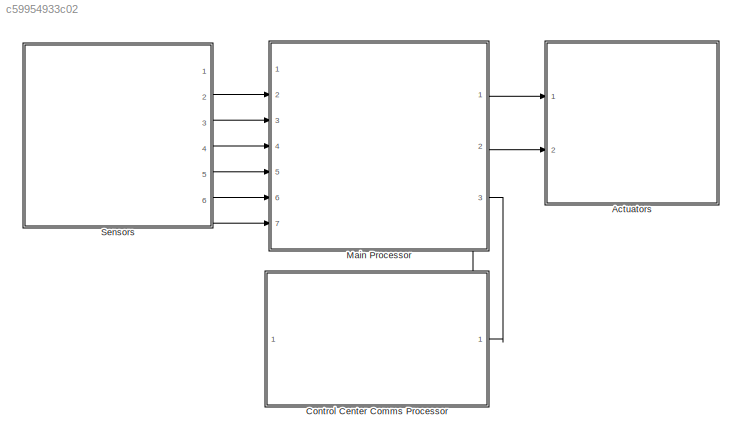
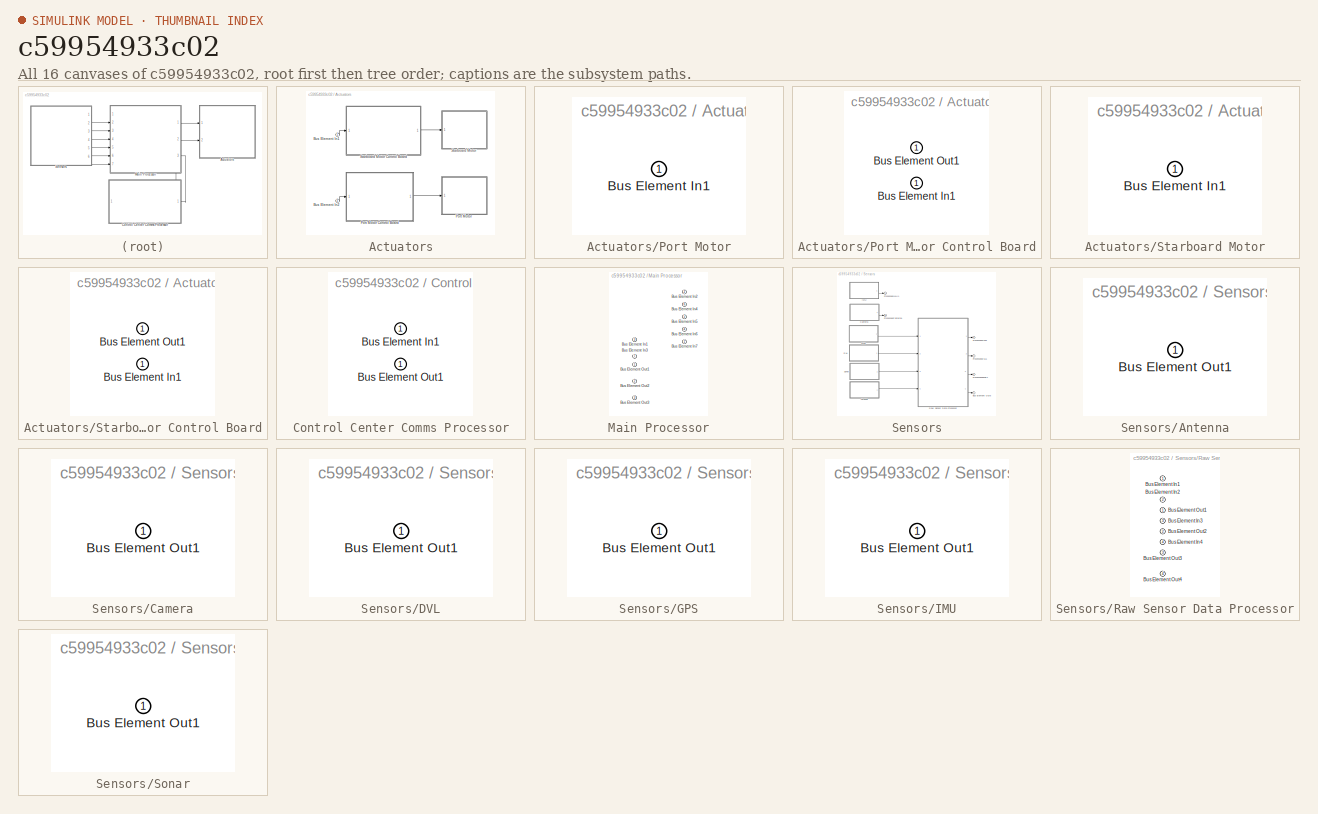
[diagram: thumbnail index - all 16 canvases of the model, root first then tree order]
MODEL slx_c59954933c02
KIND model
CONFIG AbsTol = auto
CONFIG EnableMultiTasking = off
CONFIG FixedStep = auto
CONFIG MaxStep = auto
CONFIG MinStep = auto
CONFIG RelTol = 1e-3
CONFIG SampleTimeConstraint = Unconstrained
CONFIG SolverName = VariableStepAuto
CONFIG StartTime = 0.0
CONFIG StopTime = 10.0
WORKSPACE source: mxarray member
WORKSPACE DataToReport: Simulink.Bus (value not decoded)
BLOCK [SubSystem] Actuators
  PortSchema = {"entries":[{"content":{"headerSize":26,"margin":15,"minimumSpacing":25,"sides":[{"content":{"connectorIds":["In1","In2"]},"type":"ConnectorPlacement.EquallySpacedRectSide","uuid":"92d6a8cb-947e-47d6-81f8-e687db23cc48"},{"content":{"connectorIds":[],"side":"RIGHT"},"type":"ConnectorPlacement.EquallySpacedRectSide","uuid":"2f71feb6-2a58-4436-853a-8f489ba40545"},{"content":{"connectorIds":[],"side":...<+290ch>
  Ports = [2]
  RequestExecContextInheritance = off
BLOCK [Inport] Actuators/Bus Element In1
BLOCK [Inport] Actuators/Bus Element In2
  Port = 2
BLOCK [SubSystem] Actuators/Port Motor
  PortSchema = {"entries":[{"content":{"headerSize":26,"margin":15,"minimumSpacing":25,"sides":[{"content":{"connectorIds":["In1"]},"type":"ConnectorPlacement.EquallySpacedRectSide","uuid":"92d6a8cb-947e-47d6-81f8-e687db23cc48"},{"content":{"connectorIds":[],"side":"RIGHT"},"type":"ConnectorPlacement.EquallySpacedRectSide","uuid":"2f71feb6-2a58-4436-853a-8f489ba40545"},{"content":{"connectorIds":[],"side":"TOP"}...<+284ch>
  Ports = [1]
  RequestExecContextInheritance = off
BLOCK [SubSystem] Actuators/Port Motor Control Board
  PortSchema = {"entries":[{"content":{"headerSize":26,"margin":15,"minimumSpacing":25,"sides":[{"content":{"connectorIds":["In1"]},"type":"ConnectorPlacement.EquallySpacedRectSide","uuid":"92d6a8cb-947e-47d6-81f8-e687db23cc48"},{"content":{"connectorIds":["Out1"],"side":"RIGHT"},"type":"ConnectorPlacement.EquallySpacedRectSide","uuid":"2f71feb6-2a58-4436-853a-8f489ba40545"},{"content":{"connectorIds":[],"side":...<+290ch>
  Ports = [1, 1]
  RequestExecContextInheritance = off
BLOCK [Inport] Actuators/Port Motor Control Board/Bus Element In1
BLOCK [Outport] Actuators/Port Motor Control Board/Bus Element Out1
BLOCK [Inport] Actuators/Port Motor/Bus Element In1
BLOCK [SubSystem] Actuators/Starboard Motor
  PortSchema = {"entries":[{"content":{"headerSize":26,"margin":15,"minimumSpacing":25,"sides":[{"content":{"connectorIds":["In1"]},"type":"ConnectorPlacement.EquallySpacedRectSide","uuid":"92d6a8cb-947e-47d6-81f8-e687db23cc48"},{"content":{"connectorIds":[],"side":"RIGHT"},"type":"ConnectorPlacement.EquallySpacedRectSide","uuid":"2f71feb6-2a58-4436-853a-8f489ba40545"},{"content":{"connectorIds":[],"side":"TOP"}...<+284ch>
  Ports = [1]
  RequestExecContextInheritance = off
BLOCK [SubSystem] Actuators/Starboard Motor Control Board
  PortSchema = {"entries":[{"content":{"headerSize":26,"margin":15,"minimumSpacing":25,"sides":[{"content":{"connectorIds":["In1"]},"type":"ConnectorPlacement.EquallySpacedRectSide","uuid":"92d6a8cb-947e-47d6-81f8-e687db23cc48"},{"content":{"connectorIds":["Out1"],"side":"RIGHT"},"type":"ConnectorPlacement.EquallySpacedRectSide","uuid":"2f71feb6-2a58-4436-853a-8f489ba40545"},{"content":{"connectorIds":[],"side":...<+290ch>
  Ports = [1, 1]
  RequestExecContextInheritance = off
BLOCK [Inport] Actuators/Starboard Motor Control Board/Bus Element In1
BLOCK [Outport] Actuators/Starboard Motor Control Board/Bus Element Out1
BLOCK [Inport] Actuators/Starboard Motor/Bus Element In1
BLOCK [SubSystem] Control Center Comms Processor
  PortSchema = {"entries":[{"content":{"headerSize":26,"margin":15,"minimumSpacing":25,"sides":[{"content":{"connectorIds":["Out1"]},"type":"ConnectorPlacement.EquallySpacedRectSide","uuid":"92d6a8cb-947e-47d6-81f8-e687db23cc48"},{"content":{"connectorIds":["In1"],"side":"RIGHT"},"type":"ConnectorPlacement.EquallySpacedRectSide","uuid":"2f71feb6-2a58-4436-853a-8f489ba40545"},{"content":{"connectorIds":[],"side":...<+290ch>
  Ports = [1, 1]
  RequestExecContextInheritance = off
BLOCK [Inport] Control Center Comms Processor/Bus Element In1
BLOCK [Outport] Control Center Comms Processor/Bus Element Out1
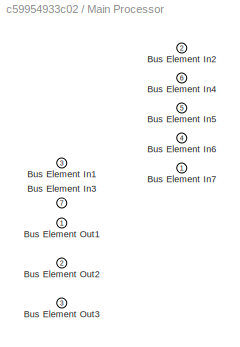
BLOCK [SubSystem] Main Processor
  PortSchema = {"entries":[{"content":{"headerSize":26,"margin":15,"minimumSpacing":25,"sides":[{"content":{"connectorIds":["In3","In2","In4","In5","In6","In7","In1"]},"type":"ConnectorPlacement.EquallySpacedRectSide","uuid":"92d6a8cb-947e-47d6-81f8-e687db23cc48"},{"content":{"connectorIds":["Out1","Out2","Out3"],"side":"RIGHT"},"type":"ConnectorPlacement.EquallySpacedRectSide","uuid":"2f71feb6-2a58-4436-853a-8f...<+484ch>
  Ports = [7, 3]
  RequestExecContextInheritance = off
BLOCK [Inport] Main Processor/Bus Element In1
  Port = 3
BLOCK [Inport] Main Processor/Bus Element In2
  Port = 2
BLOCK [Inport] Main Processor/Bus Element In3
  Port = 7
BLOCK [Inport] Main Processor/Bus Element In4
  Port = 6
BLOCK [Inport] Main Processor/Bus Element In5
  Port = 5
BLOCK [Inport] Main Processor/Bus Element In6
  Port = 4
BLOCK [Inport] Main Processor/Bus Element In7
BLOCK [Outport] Main Processor/Bus Element Out1
BLOCK [Outport] Main Processor/Bus Element Out2
  Port = 2
BLOCK [Outport] Main Processor/Bus Element Out3
  Port = 3
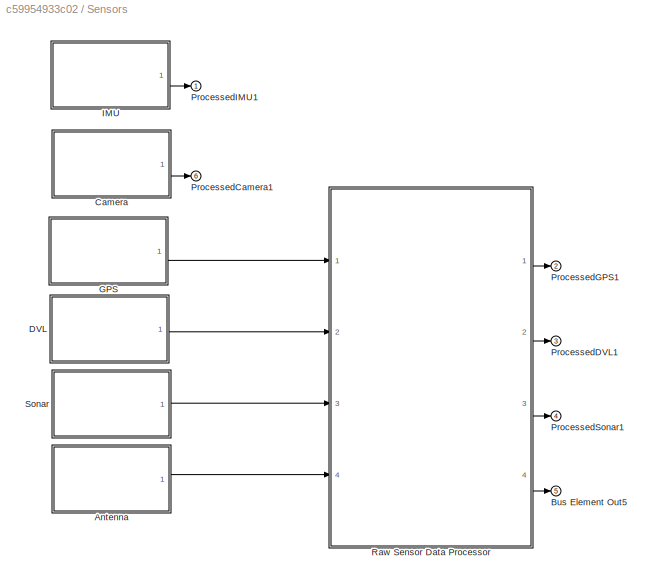
BLOCK [SubSystem] Sensors
  PortSchema = {"entries":[{"content":{"headerSize":26,"margin":15,"minimumSpacing":25,"sides":[{"content":{"connectorIds":[]},"type":"ConnectorPlacement.EquallySpacedRectSide","uuid":"ebeba1ac-198c-4738-ae02-dee736f3e255"},{"content":{"connectorIds":["Out1","Out2","Out3","Out4","Out6","Out5"],"side":"RIGHT"},"type":"ConnectorPlacement.EquallySpacedRectSide","uuid":"9a9b5092-10f1-44a7-a087-51aace0dbe34"},{"conte...<+320ch>
  Ports = [0, 6]
  RequestExecContextInheritance = off
BLOCK [SubSystem] Sensors/Antenna
  PortSchema = {"entries":[{"content":{"headerSize":26,"margin":15,"minimumSpacing":25,"sides":[{"content":{"connectorIds":[]},"type":"ConnectorPlacement.EquallySpacedRectSide","uuid":"39ab5f6e-200b-418c-957c-0427e0a2d192"},{"content":{"connectorIds":["Out1"],"side":"RIGHT"},"type":"ConnectorPlacement.EquallySpacedRectSide","uuid":"2abcd6b7-9ef0-4689-b904-6f1a8a48cdb7"},{"content":{"connectorIds":[],"side":"TOP"...<+285ch>  <repeated x6 — deduplicated; at blocks: Antenna, Camera, DVL, GPS, IMU, Sonar>
  Ports = [0, 1]
  RequestExecContextInheritance = off
BLOCK [Outport] Sensors/Antenna/Bus Element Out1
BLOCK [Outport] Sensors/Bus Element Out5
  Port = 5
BLOCK [SubSystem] Sensors/Camera
  Ports = [0, 1]
  RequestExecContextInheritance = off
BLOCK [Outport] Sensors/Camera/Bus Element Out1
BLOCK [SubSystem] Sensors/DVL
  Ports = [0, 1]
  RequestExecContextInheritance = off
BLOCK [Outport] Sensors/DVL/Bus Element Out1
BLOCK [SubSystem] Sensors/GPS
  Ports = [0, 1]
  RequestExecContextInheritance = off
BLOCK [Outport] Sensors/GPS/Bus Element Out1
BLOCK [SubSystem] Sensors/IMU
  Ports = [0, 1]
  RequestExecContextInheritance = off
BLOCK [Outport] Sensors/IMU/Bus Element Out1
BLOCK [Outport] Sensors/ProcessedCamera1
  Port = 6
BLOCK [Outport] Sensors/ProcessedDVL1
  Port = 3
BLOCK [Outport] Sensors/ProcessedGPS1
  Port = 2
BLOCK [Outport] Sensors/ProcessedIMU1
BLOCK [Outport] Sensors/ProcessedSonar1
  Port = 4
BLOCK [SubSystem] Sensors/Raw Sensor Data Processor
  PortSchema = {"entries":[{"content":{"headerSize":26,"margin":15,"minimumSpacing":25,"sides":[{"content":{"connectorIds":["In1","In2","In3","In4"]},"type":"ConnectorPlacement.EquallySpacedRectSide","uuid":"92d6a8cb-947e-47d6-81f8-e687db23cc48"},{"content":{"connectorIds":["Out1","Out2","Out3","Out4"],"side":"RIGHT"},"type":"ConnectorPlacement.EquallySpacedRectSide","uuid":"2f71feb6-2a58-4436-853a-8f489ba40545"...<+329ch>
  Ports = [4, 4]
  RequestExecContextInheritance = off
BLOCK [Inport] Sensors/Raw Sensor Data Processor/Bus Element In1
BLOCK [Inport] Sensors/Raw Sensor Data Processor/Bus Element In2
  Port = 2
BLOCK [Inport] Sensors/Raw Sensor Data Processor/Bus Element In3
  Port = 3
BLOCK [Inport] Sensors/Raw Sensor Data Processor/Bus Element In4
  Port = 4
BLOCK [Outport] Sensors/Raw Sensor Data Processor/Bus Element Out1
BLOCK [Outport] Sensors/Raw Sensor Data Processor/Bus Element Out2
  Port = 2
BLOCK [Outport] Sensors/Raw Sensor Data Processor/Bus Element Out3
  Port = 3
BLOCK [Outport] Sensors/Raw Sensor Data Processor/Bus Element Out4
  Port = 4
BLOCK [SubSystem] Sensors/Sonar
  Ports = [0, 1]
  RequestExecContextInheritance = off
BLOCK [Outport] Sensors/Sonar/Bus Element Out1
LINE Actuators/Bus Element In1:1 -> Actuators/Starboard Motor Control Board:1
LINE Actuators/Bus Element In2:1 -> Actuators/Port Motor Control Board:1
LINE Actuators/Port Motor Control Board:1 -> Actuators/Port Motor:1
LINE Actuators/Starboard Motor Control Board:1 -> Actuators/Starboard Motor:1
LINE Control Center Comms Processor:1 -> Main Processor:1
LINE Main Processor:1 -> Actuators:1
LINE Main Processor:2 -> Actuators:2
LINE Main Processor:3 -> Control Center Comms Processor:1
LINE Sensors/Antenna:1 -> Sensors/Raw Sensor Data Processor:4
LINE Sensors/Camera:1 -> Sensors/ProcessedCamera1:1
LINE Sensors/DVL:1 -> Sensors/Raw Sensor Data Processor:2
LINE Sensors/GPS:1 -> Sensors/Raw Sensor Data Processor:1
LINE Sensors/IMU:1 -> Sensors/ProcessedIMU1:1
LINE Sensors/Raw Sensor Data Processor:1 -> Sensors/ProcessedGPS1:1
LINE Sensors/Raw Sensor Data Processor:2 -> Sensors/ProcessedDVL1:1
LINE Sensors/Raw Sensor Data Processor:3 -> Sensors/ProcessedSonar1:1
LINE Sensors/Raw Sensor Data Processor:4 -> Sensors/Bus Element Out5:1
LINE Sensors/Sonar:1 -> Sensors/Raw Sensor Data Processor:3
LINE Sensors:1 -> Main Processor:3
LINE Sensors:2 -> Main Processor:2
LINE Sensors:3 -> Main Processor:4
LINE Sensors:4 -> Main Processor:5
LINE Sensors:5 -> Main Processor:7
LINE Sensors:6 -> Main Processor:6
